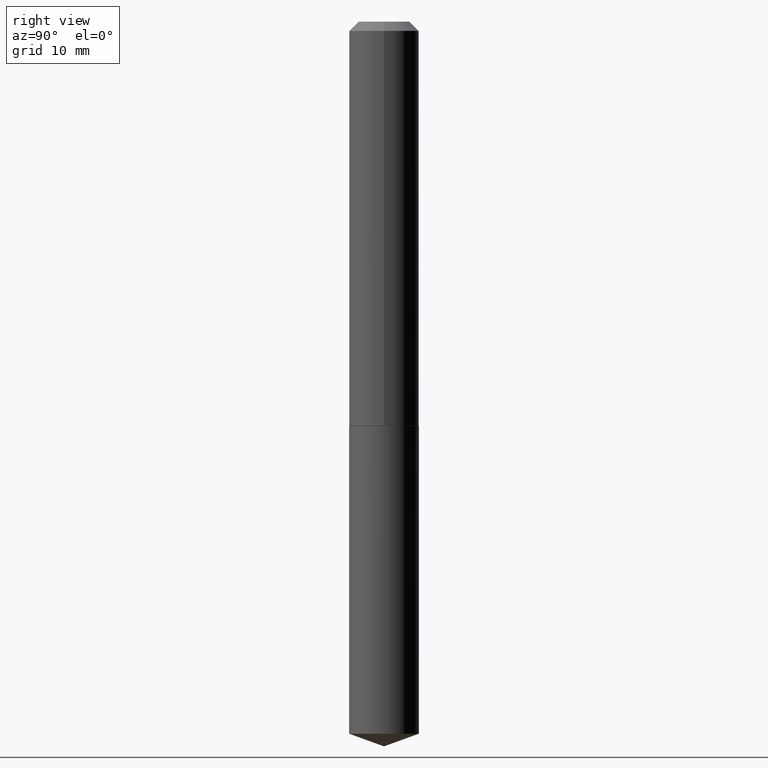
[diagram: clean part render]
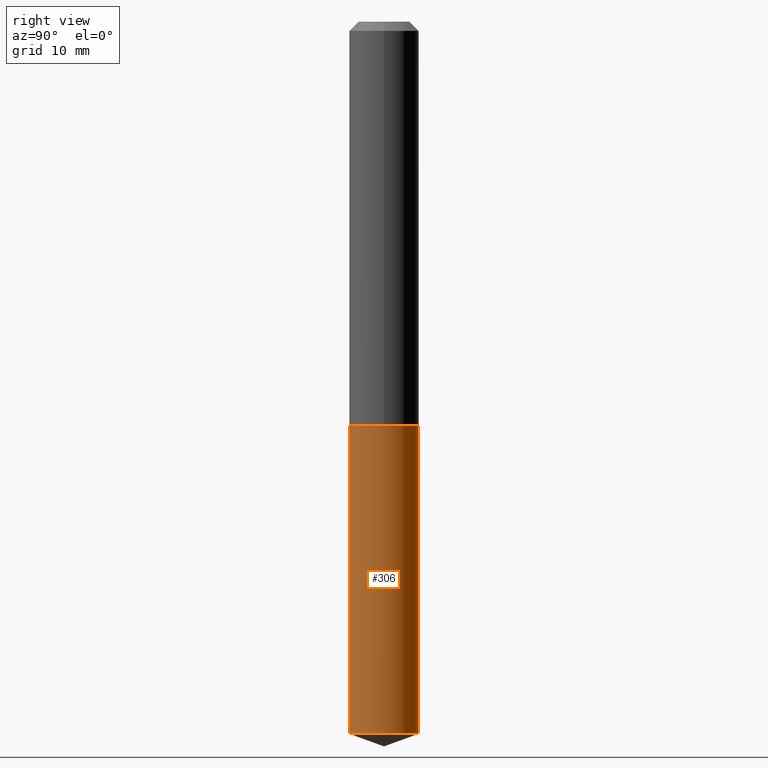
[diagram: same view with one face highlighted and labeled with its STEP entity id]
A machine part, right view. The second image highlights one B-rep face of the part: STEP entity #306.
In plain terms, the highlighted cylindrical surface (edge-blend (fillet) strip) has radius 2.9769 mm, axis along (-0, 0, 1).
Its self-contained STEP definition (entity closure, byte-faithful):
#7 = AXIS2_PLACEMENT_3D ( 'NONE', #152, #12, #278 ) ;
#12 = DIRECTION ( 'NONE',  ( -2.445142826473885278E-29, 3.491948160343270663E-15, 1.000000000000000000 ) ) ;
#19 = DIRECTION ( 'NONE',  ( -2.445142826473885278E-29, 3.491948160343270663E-15, 1.000000000000000000 ) ) ;
#53 = ORIENTED_EDGE ( 'NONE', *, *, #212, .T. ) ;
#59 = ORIENTED_EDGE ( 'NONE', *, *, #245, .F. ) ;
#65 = DIRECTION ( 'NONE',  ( -2.445142826473885278E-29, 3.491948160343270663E-15, 1.000000000000000000 ) ) ;
#101 = DIRECTION ( 'NONE',  ( -6.982962677686265922E-15, -1.000000000000000000, 2.330928322239132474E-15 ) ) ;
#102 = DIRECTION ( 'NONE',  ( -6.982962677686265922E-15, -1.000000000000000000, 2.330928322239132474E-15 ) ) ;
#113 = EDGE_CURVE ( 'NONE', #185, #274, #130, .T. ) ;
#130 = CIRCLE ( 'NONE', #7, 0.1171999999999999986 ) ;
#135 = CARTESIAN_POINT ( 'NONE',  ( 8.327560863108961782E-16, 0.1171999999999952663, -1.359399999999999942 ) ) ;
#152 = CARTESIAN_POINT ( 'NONE',  ( 5.856175557246273270E-29, -8.362031923425486849E-15, -2.394842688544001064 ) ) ;
#158 = EDGE_CURVE ( 'NONE', #185, #323, #256, .T. ) ;
#163 = DIRECTION ( 'NONE',  ( -2.445142826473885278E-29, 3.491948160343270663E-15, 1.000000000000000000 ) ) ;
#182 = ORIENTED_EDGE ( 'NONE', *, *, #158, .F. ) ;
#185 = VERTEX_POINT ( 'NONE', #189 ) ;
#189 = CARTESIAN_POINT ( 'NONE',  ( -8.184032258247719810E-16, -0.1172000000000083947, -2.394842688544001064 ) ) ;
#192 = DIRECTION ( 'NONE',  ( -2.445142826473885278E-29, 3.491948160343270663E-15, 1.000000000000000000 ) ) ;
#197 = CARTESIAN_POINT ( 'NONE',  ( -8.184032258247971259E-16, -0.1172000000000047448, -1.359399999999999498 ) ) ;
#212 = EDGE_CURVE ( 'NONE', #274, #297, #368, .T. ) ;
#221 = CARTESIAN_POINT ( 'NONE',  ( 8.327560863108705402E-16, 0.1171999999999952524, -1.359399999999999942 ) ) ;
#245 = EDGE_CURVE ( 'NONE', #323, #297, #302, .T. ) ;
#256 = LINE ( 'NONE', #276, #283 ) ;
#260 = CARTESIAN_POINT ( 'NONE',  ( 3.324370295128073917E-29, -4.746319732023370863E-15, -1.359399999999999720 ) ) ;
#271 = EDGE_LOOP ( 'NONE', ( #293, #53, #59, #182 ) ) ;
#274 = VERTEX_POINT ( 'NONE', #318 ) ;
#276 = CARTESIAN_POINT ( 'NONE',  ( -8.184032258247971259E-16, -0.1172000000000047448, -1.359399999999999498 ) ) ;
#278 = DIRECTION ( 'NONE',  ( -6.982962677686265922E-15, -1.000000000000000000, 2.330928322239132474E-15 ) ) ;
#279 = AXIS2_PLACEMENT_3D ( 'NONE', #374, #163, #102 ) ;
#283 = VECTOR ( 'NONE', #192, 39.37007874015748143 ) ;
#293 = ORIENTED_EDGE ( 'NONE', *, *, #113, .T. ) ;
#297 = VERTEX_POINT ( 'NONE', #135 ) ;
#302 = CIRCLE ( 'NONE', #333, 0.1171999999999999986 ) ;
#306 = ADVANCED_FACE ( 'NONE', ( #346 ), #382, .T. ) ;
#318 = CARTESIAN_POINT ( 'NONE',  ( 8.327560863108961782E-16, 0.1171999999999916720, -2.394842688544001508 ) ) ;
#323 = VERTEX_POINT ( 'NONE', #197 ) ;
#333 = AXIS2_PLACEMENT_3D ( 'NONE', #260, #19, #101 ) ;
#342 = VECTOR ( 'NONE', #65, 39.37007874015748143 ) ;
#346 = FACE_OUTER_BOUND ( 'NONE', #271, .T. ) ;
#368 = LINE ( 'NONE', #221, #342 ) ;
#374 = CARTESIAN_POINT ( 'NONE',  ( 3.324370295128073917E-29, -4.746319732023370863E-15, -1.359399999999999720 ) ) ;
#382 = CYLINDRICAL_SURFACE ( 'NONE', #279, 0.1171999999999999986 ) ;